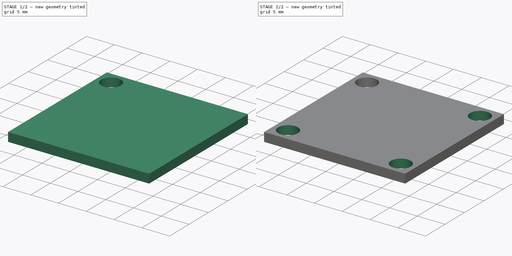
[diagram: build sequence overview — one tinted view per stage of 2, left to right]
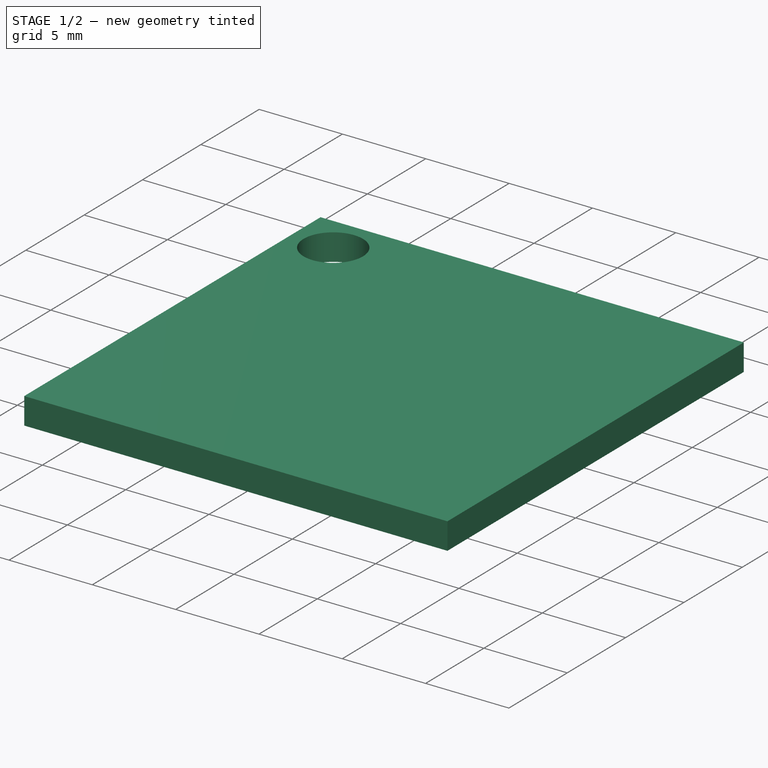
[diagram: stage 1 of 2 — iso view after this stage's code; geometry added in this stage tinted green]
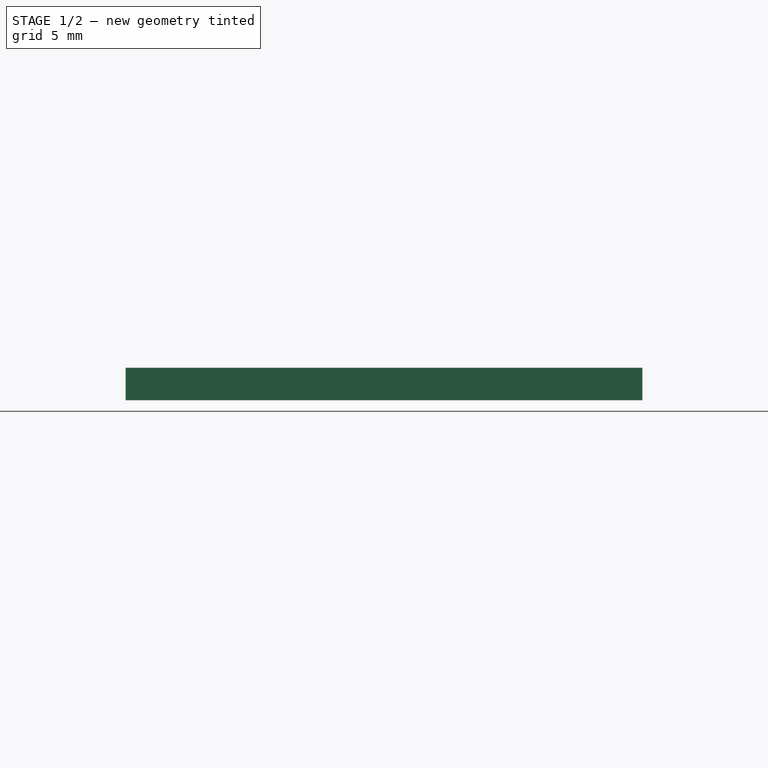
[diagram: stage 1 of 2 — front view after this stage's code; geometry added in this stage tinted green]
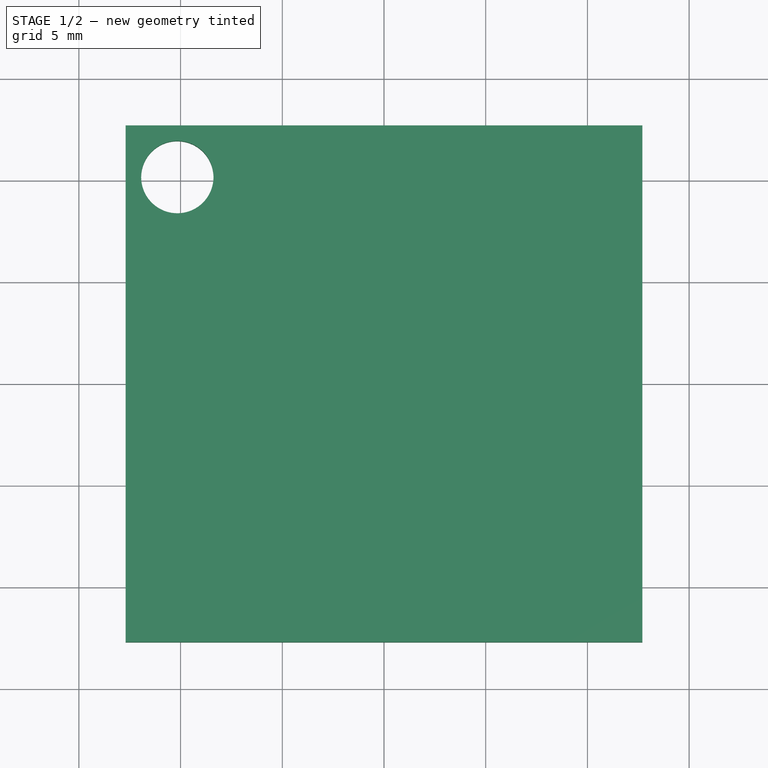
[diagram: stage 1 of 2 — top view after this stage's code; geometry added in this stage tinted green]
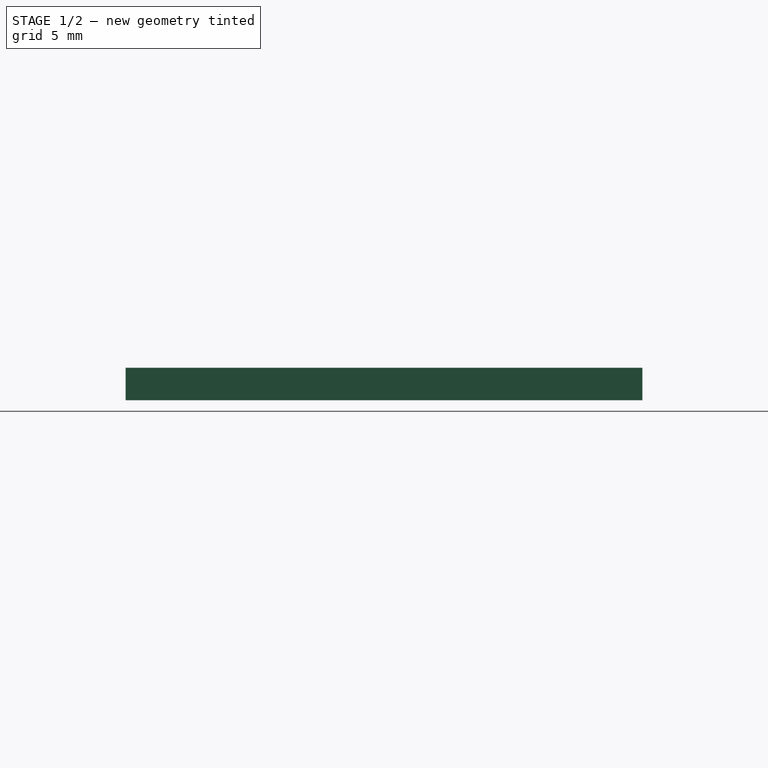
[diagram: stage 1 of 2 — right view after this stage's code; geometry added in this stage tinted green]
FCSTD DOCUMENT  (FreeCAD 0.18R4 (GitTag))
Label: Motor Driver
License: All rights reserved
LicenseURL: http://en.wikipedia.org/wiki/All_rights_reserved
objects: Sketcher::SketchObject×2, PartDesign::Mirrored×2, Part::Feature×2, PartDesign::Pad×1, PartDesign::Pocket×1, PartDesign::MultiTransform×1, PartDesign::Body×1, App::Part×1
note: 12 computed .brp shape members not serialized (recipe doc carries the construction recipe); baked Part::Feature solids carry a one-line shape summary decoded from their .brp

FEATURE [Sketcher::SketchObject] Sketch
  MapMode = 5
  Support = -> [XY_Plane]
  sketch-geometry (4):
    g0: LineSegment StartX=-12.7 StartY=12.7 StartZ=0 EndX=12.7 EndY=12.7 EndZ=0
    g1: LineSegment StartX=12.7 StartY=12.7 StartZ=0 EndX=12.7 EndY=-12.7 EndZ=0
    g2: LineSegment StartX=12.7 StartY=-12.7 StartZ=0 EndX=-12.7 EndY=-12.7 EndZ=0
    g3: LineSegment StartX=-12.7 StartY=-12.7 StartZ=0 EndX=-12.7 EndY=12.7 EndZ=0
  constraints (11):
    c: Coincident(g0,g1)
    c: Coincident(g1,g2)
    c: Coincident(g2,g3)
    c: Coincident(g3,g0)
    c: Horizontal(g0)
    c: Horizontal(g2)
    c: Vertical(g1)
    c: Vertical(g3)
    c: Symmetric(g0,g2,g-1)
    c: DistanceX(g0,g0) = 25.4
    c: DistanceY(g1,g1) = 25.4
FEATURE [PartDesign::Pad] Pad
  Length = 1.6
  Length2 = 100
  Profile = -> Sketch
  Type = 0
FEATURE [Sketcher::SketchObject] Sketch001
  ExternalGeometry = -> [Pad]
  MapMode = 5
  Placement = pos=(0,0,1.6) rot=(0,0,1;0rad)
  Support = -> [Pad]
  sketch-geometry (1):
    g0: Circle CenterX=-10.16 CenterY=10.16 CenterZ=0 NormalX=0 NormalY=0 NormalZ=1 AngleXU=0 Radius=1.778
  constraints (3):
    c: DistanceX(g-3,g0) = 2.54
    c: DistanceY(g0,g-3) = 2.54
    c: Radius(g0) = 1.778
FEATURE [PartDesign::Pocket] Pocket
  BaseFeature = -> Pad
  Length = 5
  Length2 = 100
  Profile = -> Sketch001
  Type = 1
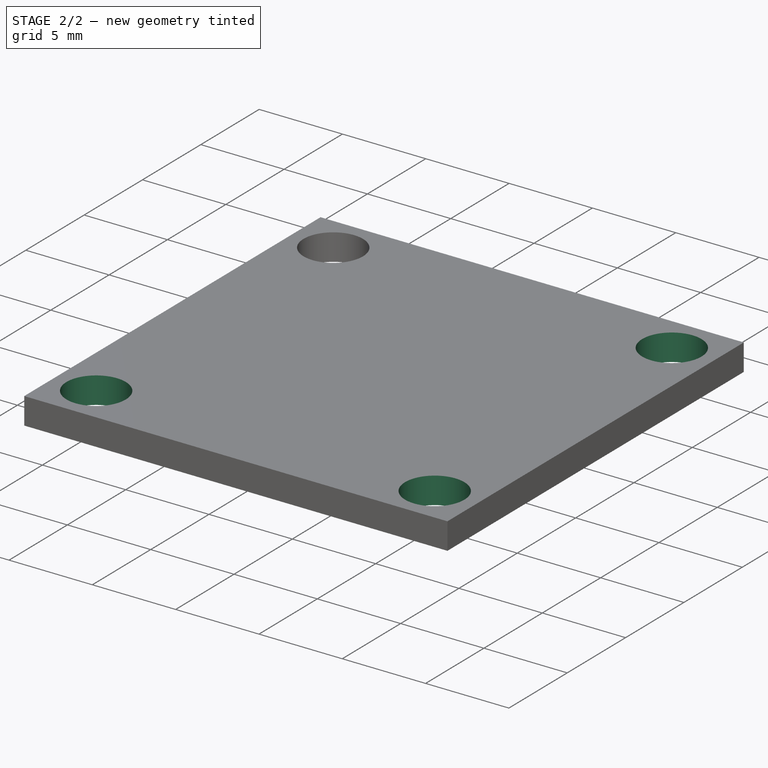
[diagram: stage 2 of 2 — iso view after this stage's code; geometry added in this stage tinted green]
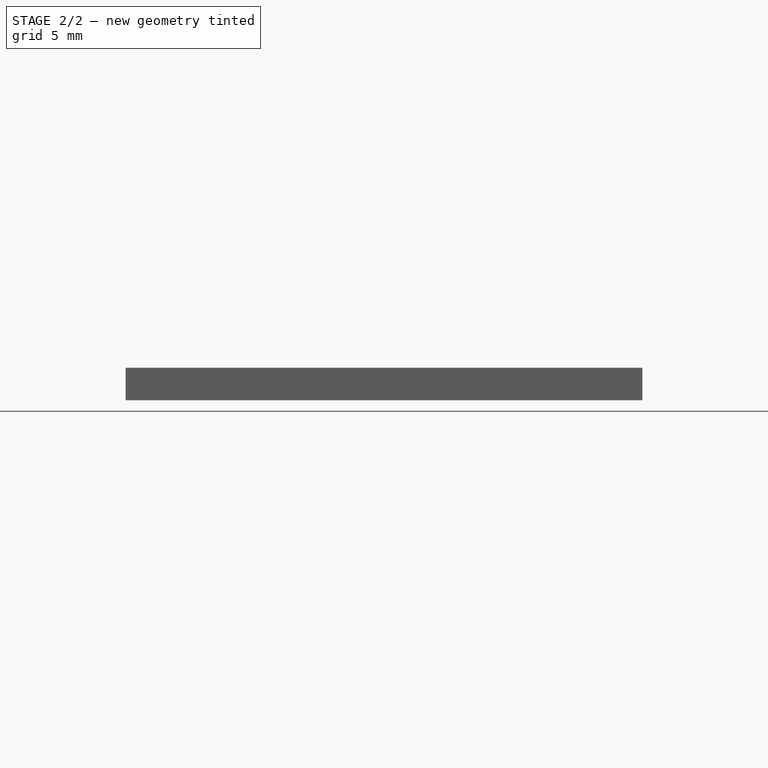
[diagram: stage 2 of 2 — front view after this stage's code; geometry added in this stage tinted green]
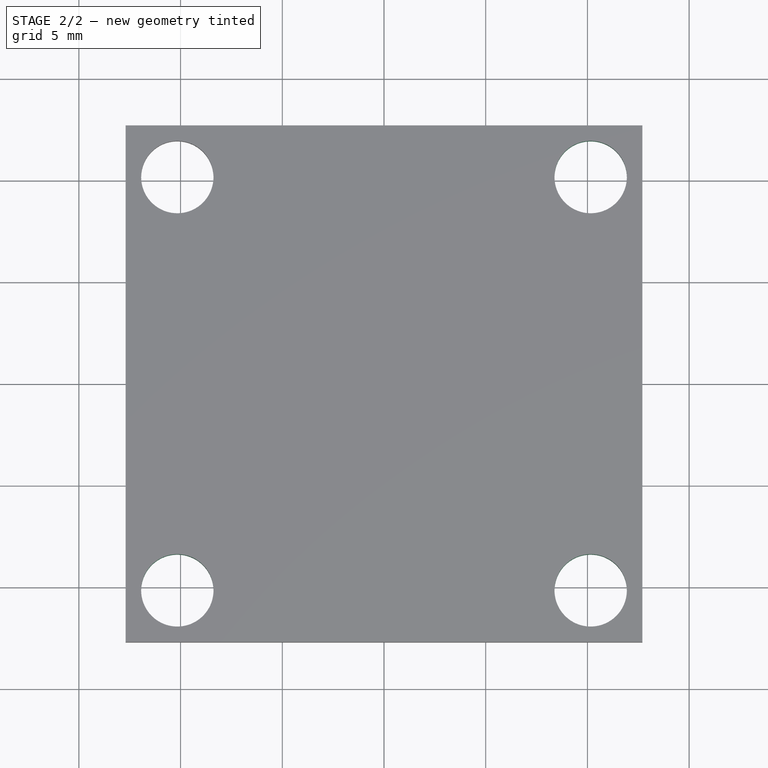
[diagram: stage 2 of 2 — top view after this stage's code; geometry added in this stage tinted green]
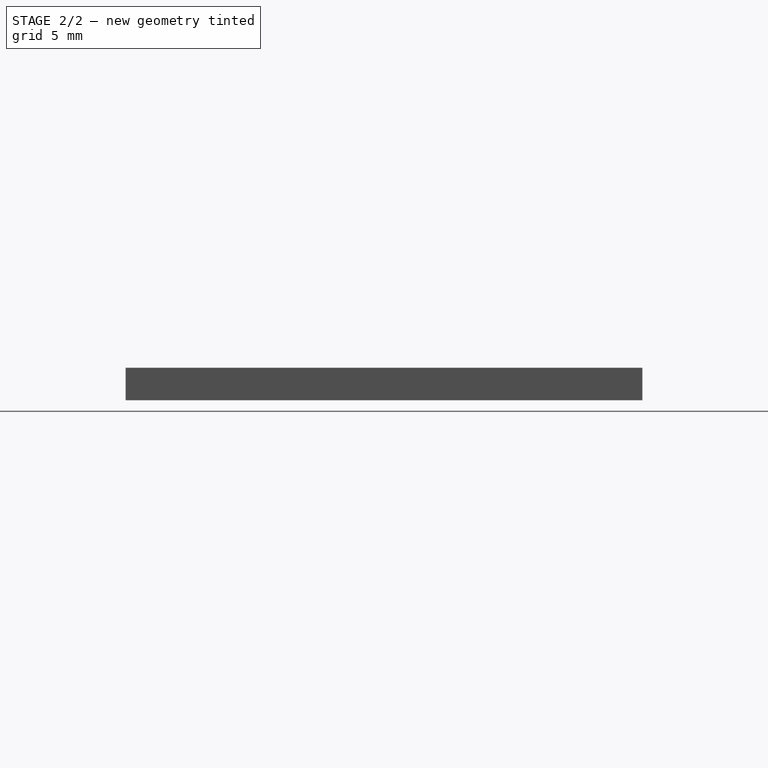
[diagram: stage 2 of 2 — right view after this stage's code; geometry added in this stage tinted green]
FEATURE [PartDesign::Mirrored] Mirrored
  MirrorPlane = -> Sketch001 [V_Axis]
FEATURE [PartDesign::Mirrored] Mirrored001
  MirrorPlane = -> XZ_Plane
FEATURE [PartDesign::MultiTransform] MultiTransform
  BaseFeature = -> Pocket
  Originals = -> [Pocket]
  Transformations = -> [Mirrored,Mirrored001]
FEATURE [PartDesign::Body] Body  label="PCB"
  Group = -> [Sketch,Pad,Sketch001,Pocket,MultiTransform,Mirrored,Mirrored001]
  Origin = -> Origin
  Tip = -> MultiTransform
FEATURE [Part::Feature] Part__Feature001  label="Motor"
  Placement = pos=(0,-10,1.6) rot=(1,0,0;1.5708rad)
  shape: bbox 14.3 x 6.8 x 10.4 mm, 218 faces, 13 solids (baked)
FEATURE [Part::Feature] Part__Feature  label="Vin"
  Placement = pos=(0,10,1.6) rot=(0,-0.707107,-0.707107;3.14159rad)
  shape: bbox 7.3 x 6.8 x 10.4 mm, 122 faces, 7 solids (baked)
FEATURE [App::Part] Part  label="Driver"
  Group = -> [Body,Part__Feature,Part__Feature001]
  Origin = -> Origin001
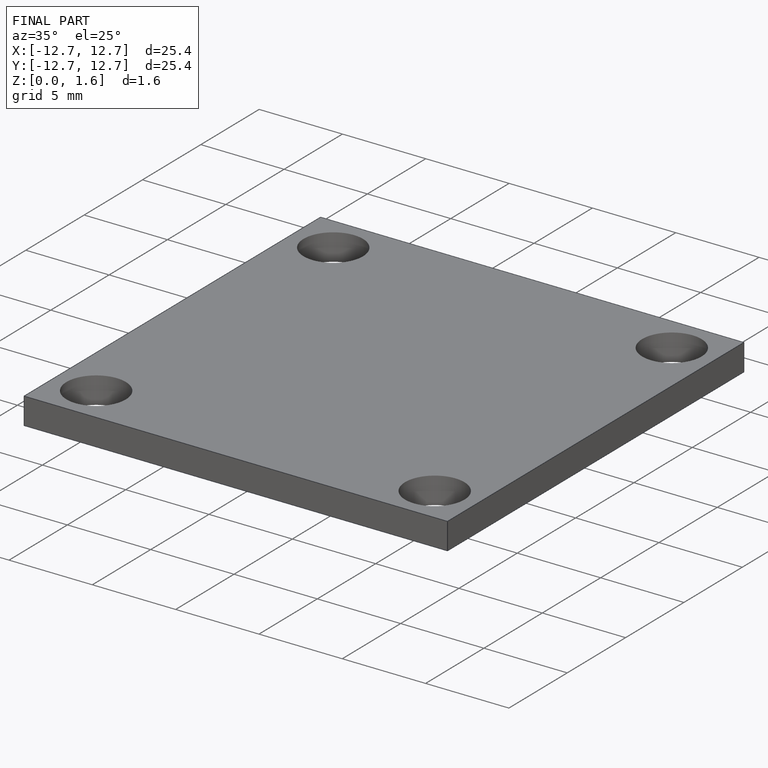
[diagram: finished part — iso view with bounding-box wireframe]
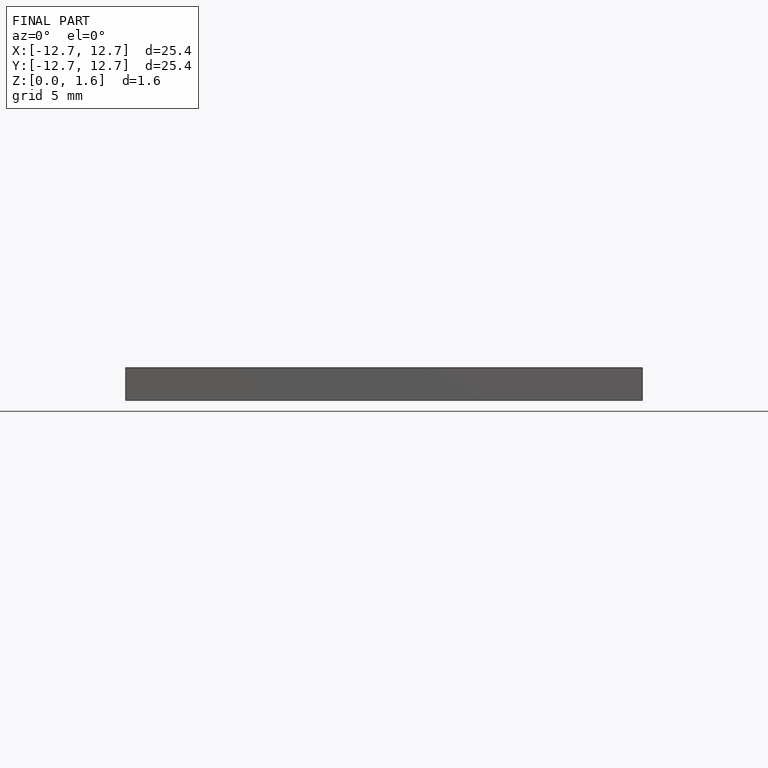
[diagram: finished part — front view with bounding-box wireframe]
